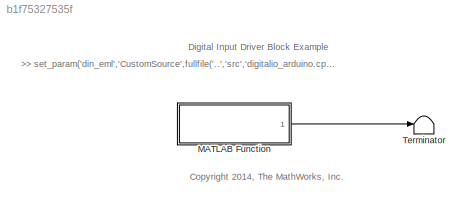
MODEL slx_b1f75327535f
KIND model
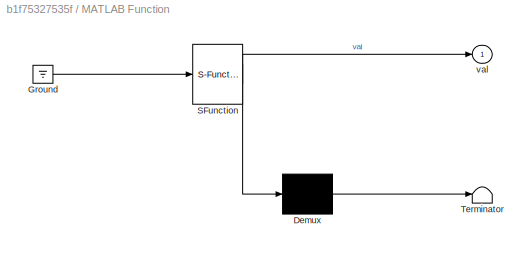
BLOCK [SubSystem] MATLAB Function
  ErrorFcn = Stateflow.Translate.translate
  PermitHierarchicalResolution = ExplicitOnly
  Ports = [0, 1]
  RequestExecContextInheritance = off
  SFBlockType = MATLAB Function
  TreatAsAtomicUnit = on
BLOCK [Demux] MATLAB Function/ Demux 
  Outputs = 1
  Ports = [1, 1]
BLOCK [Ground] MATLAB Function/ Ground 
BLOCK [S-Function] MATLAB Function/ SFunction 
  EnableBusSupport = on
  FunctionName = sf_sfun
  Parameters = pin
  PortCounts = [1 2]
  Ports = [1, 2]
  Tag = Stateflow S-Function din_eml 2
BLOCK [Terminator] MATLAB Function/ Terminator 
BLOCK [Outport] MATLAB Function/val
  IconDisplay = Port number
BLOCK [Terminator] Terminator
ANNOTATION (root): >> set_param('din_eml','CustomSource',fullfile('..','src','digitalio_arduino.cpp'))
ANNOTATION (root): <copyright redacted>
ANNOTATION (root): Digital Input Driver Block Example
LINE MATLAB Function:1 -> Terminator:1
